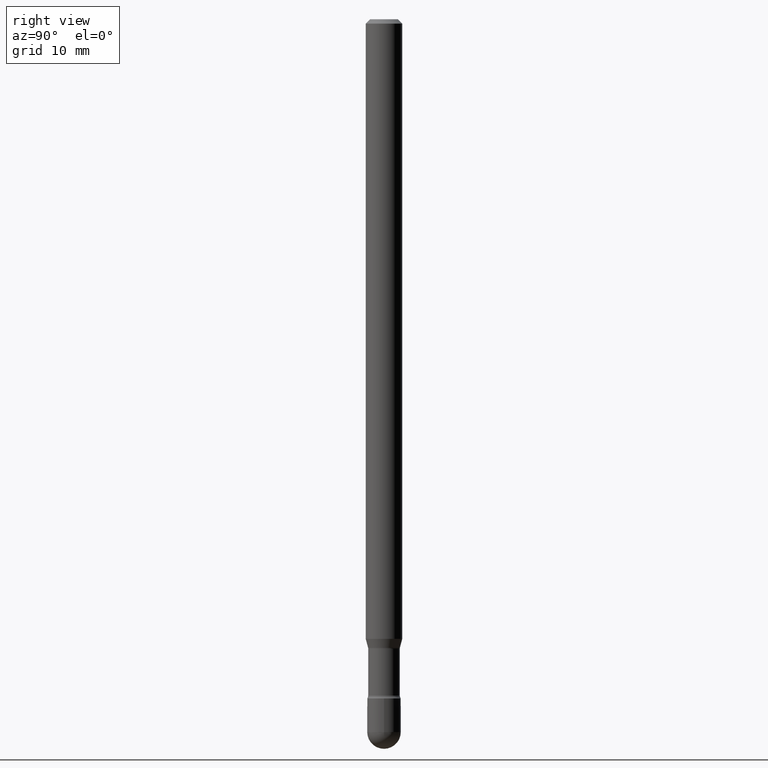
[diagram: clean part render]
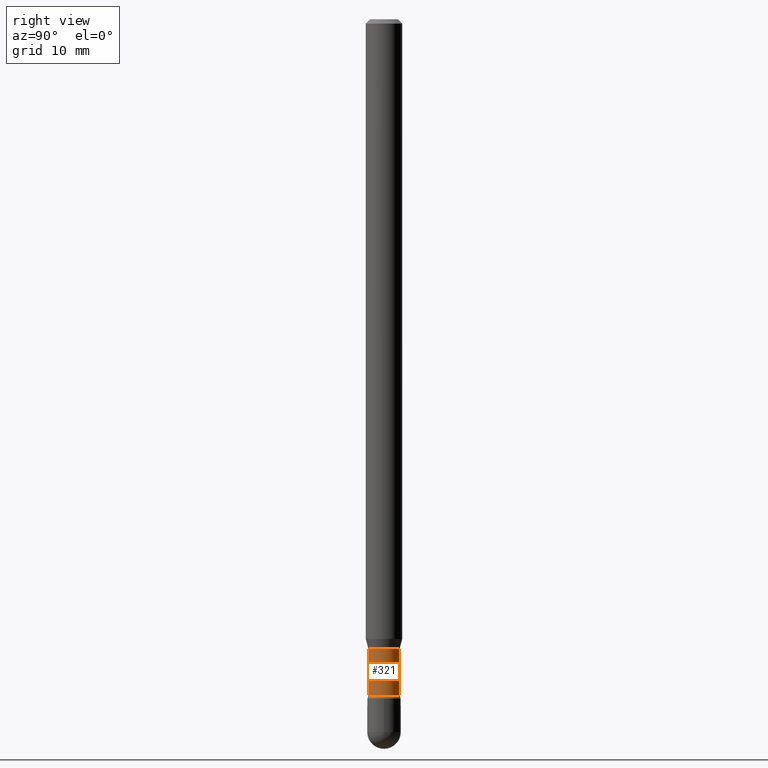
[diagram: same view with one face highlighted and labeled with its STEP entity id]
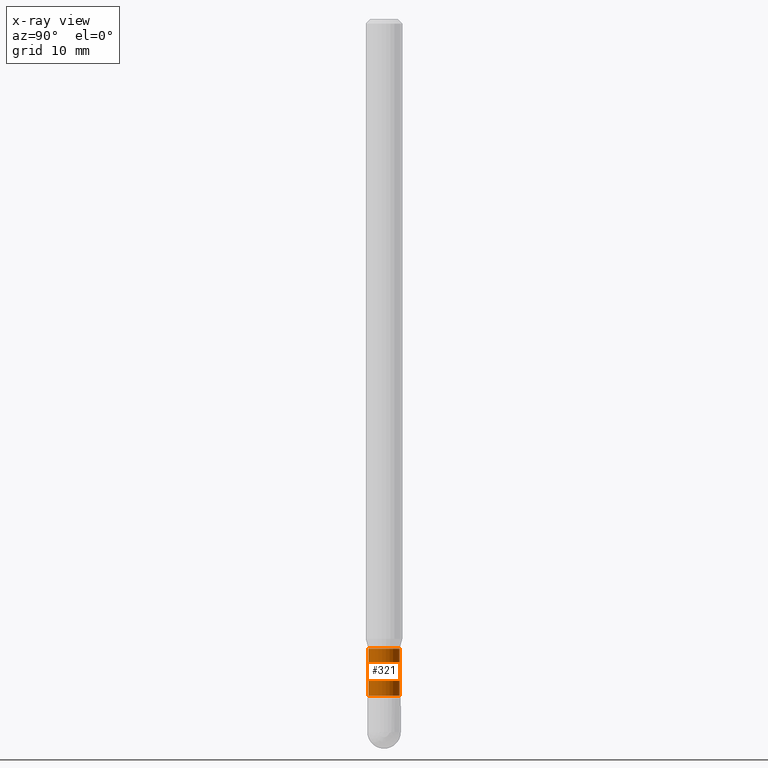
[diagram: x-ray of the same camera — body ghosted, the highlighted face saturated]
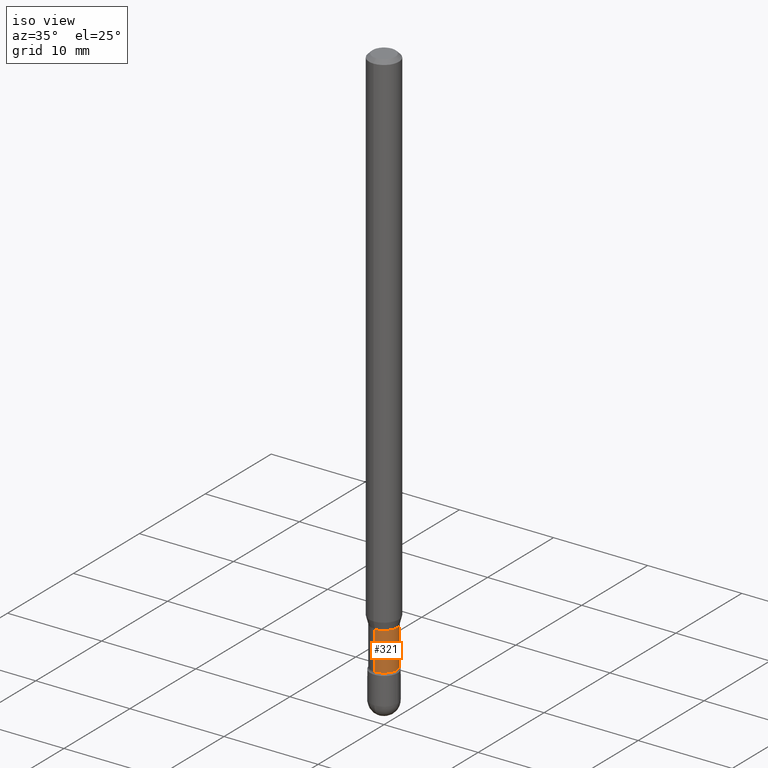
[diagram: same view with one face highlighted and labeled with its STEP entity id]
A machine part, right view. The second image highlights one B-rep face of the part: STEP entity #321.
The next image is the same camera in x-ray: the body ghosted, the highlighted face saturated — about 0% of this face is hidden behind the body in this view.
A second angle (iso view) of the same face is appended — the face is thin or edge-on in the first view.
In plain terms, the highlighted cylindrical surface (edge-blend (fillet) strip) has radius 1.3729 mm, axis along (-0, 0, 1).
Its self-contained STEP definition (entity closure, byte-faithful):
#2 = VECTOR ( 'NONE', #91, 39.37007874015748143 ) ;
#3 = AXIS2_PLACEMENT_3D ( 'NONE', #138, #174, #402 ) ;
#18 = VERTEX_POINT ( 'NONE', #380 ) ;
#60 = AXIS2_PLACEMENT_3D ( 'NONE', #236, #370, #101 ) ;
#63 = ORIENTED_EDGE ( 'NONE', *, *, #218, .F. ) ;
#91 = DIRECTION ( 'NONE',  ( -2.445502052278605935E-29, 3.491433728545047957E-15, 1.000000000000000000 ) ) ;
#101 = DIRECTION ( 'NONE',  ( -6.982962677686265922E-15, -1.000000000000000000, 3.491433728545049140E-15 ) ) ;
#108 = EDGE_CURVE ( 'NONE', #425, #432, #307, .T. ) ;
#136 = CARTESIAN_POINT ( 'NONE',  ( -3.774291327289428766E-16, -0.05405000000000002858, 6.667853919191060763E-16 ) ) ;
#138 = CARTESIAN_POINT ( 'NONE',  ( 5.274886269455959517E-29, -7.530934524572436065E-15, -2.156974787463810994 ) ) ;
#172 = DIRECTION ( 'NONE',  ( -2.445502052278605655E-29, 3.491433728545047957E-15, 1.000000000000000000 ) ) ;
#174 = DIRECTION ( 'NONE',  ( -2.445502052278605655E-29, 3.491433728545047957E-15, 1.000000000000000000 ) ) ;
#176 = DIRECTION ( 'NONE',  ( -6.982962677686266711E-15, -1.000000000000000000, 5.054297860618428788E-15 ) ) ;
#177 = EDGE_LOOP ( 'NONE', ( #385, #439, #303, #63 ) ) ;
#185 = EDGE_CURVE ( 'NONE', #18, #331, #466, .T. ) ;
#199 = AXIS2_PLACEMENT_3D ( 'NONE', #479, #172, #176 ) ;
#218 = EDGE_CURVE ( 'NONE', #18, #425, #525, .T. ) ;
#232 = LINE ( 'NONE', #534, #520 ) ;
#236 = CARTESIAN_POINT ( 'NONE',  ( -1.169113584055446105E-44, 1.669184350826100908E-30, 4.780733988912460139E-16 ) ) ;
#280 = CYLINDRICAL_SURFACE ( 'NONE', #60, 0.05405000000000002858 ) ;
#303 = ORIENTED_EDGE ( 'NONE', *, *, #108, .F. ) ;
#307 = CIRCLE ( 'NONE', #3, 0.05405000000000000082 ) ;
#321 = ADVANCED_FACE ( 'NONE', ( #531 ), #280, .T. ) ;
#331 = VERTEX_POINT ( 'NONE', #367 ) ;
#336 = EDGE_CURVE ( 'NONE', #331, #432, #232, .T. ) ;
#349 = CARTESIAN_POINT ( 'NONE',  ( -3.774291327288899243E-16, -0.05405000000000752952, -2.156974787463810994 ) ) ;
#367 = CARTESIAN_POINT ( 'NONE',  ( 3.963052108702526638E-16, 0.05404999999999195864, -2.317429341715430802 ) ) ;
#370 = DIRECTION ( 'NONE',  ( -2.445502052278605655E-29, 3.491433728545047957E-15, 1.000000000000000000 ) ) ;
#380 = CARTESIAN_POINT ( 'NONE',  ( -3.774291327288863745E-16, -0.05405000000000814708, -2.317429341715430358 ) ) ;
#385 = ORIENTED_EDGE ( 'NONE', *, *, #185, .T. ) ;
#402 = DIRECTION ( 'NONE',  ( -6.982962677686265922E-15, -1.000000000000000000, 5.054297860618433521E-15 ) ) ;
#416 = DIRECTION ( 'NONE',  ( -2.445502052278605935E-29, 3.491433728545047957E-15, 1.000000000000000000 ) ) ;
#425 = VERTEX_POINT ( 'NONE', #349 ) ;
#432 = VERTEX_POINT ( 'NONE', #458 ) ;
#439 = ORIENTED_EDGE ( 'NONE', *, *, #336, .T. ) ;
#458 = CARTESIAN_POINT ( 'NONE',  ( 3.840483486783909543E-16, 0.05404999999999247212, -2.156974787463811438 ) ) ;
#466 = CIRCLE ( 'NONE', #199, 0.05405000000000004939 ) ;
#479 = CARTESIAN_POINT ( 'NONE',  ( 5.667278211175743242E-29, -8.091150967185200289E-15, -2.317429341715430802 ) ) ;
#520 = VECTOR ( 'NONE', #416, 39.37007874015748143 ) ;
#525 = LINE ( 'NONE', #136, #2 ) ;
#531 = FACE_OUTER_BOUND ( 'NONE', #177, .T. ) ;
#534 = CARTESIAN_POINT ( 'NONE',  ( 3.840483486783343042E-16, 0.05405000000000002858, 2.893614058633860995E-16 ) ) ;